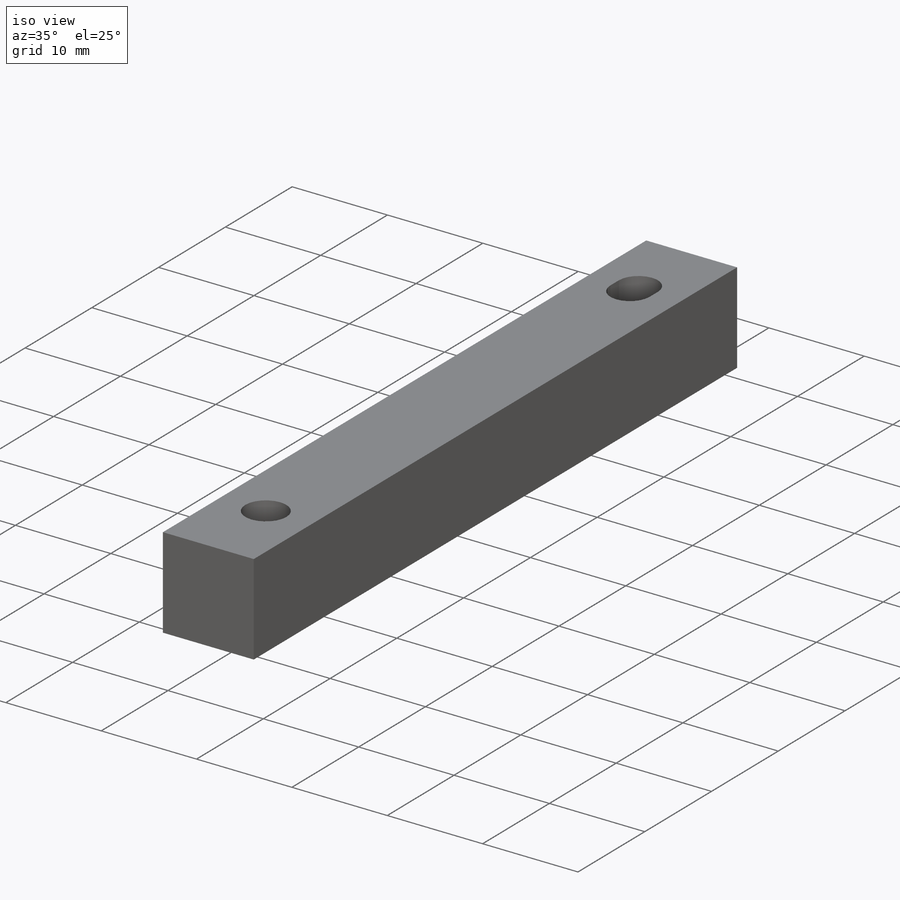
[diagram: iso view]
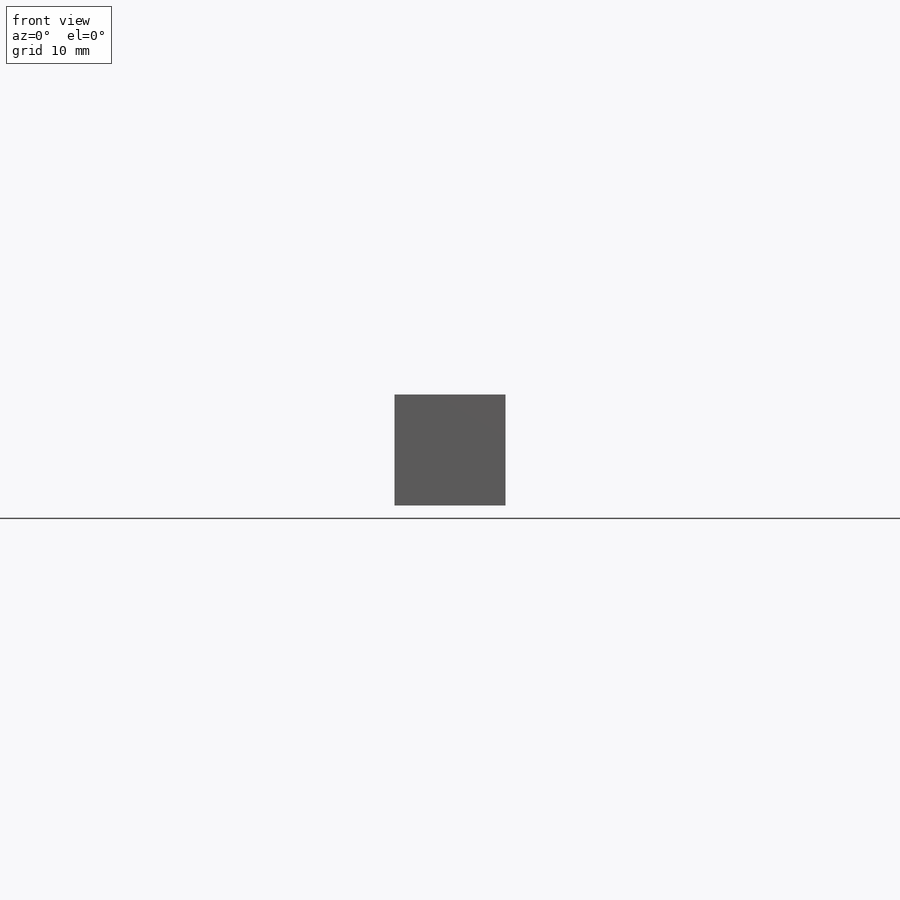
[diagram: front view]
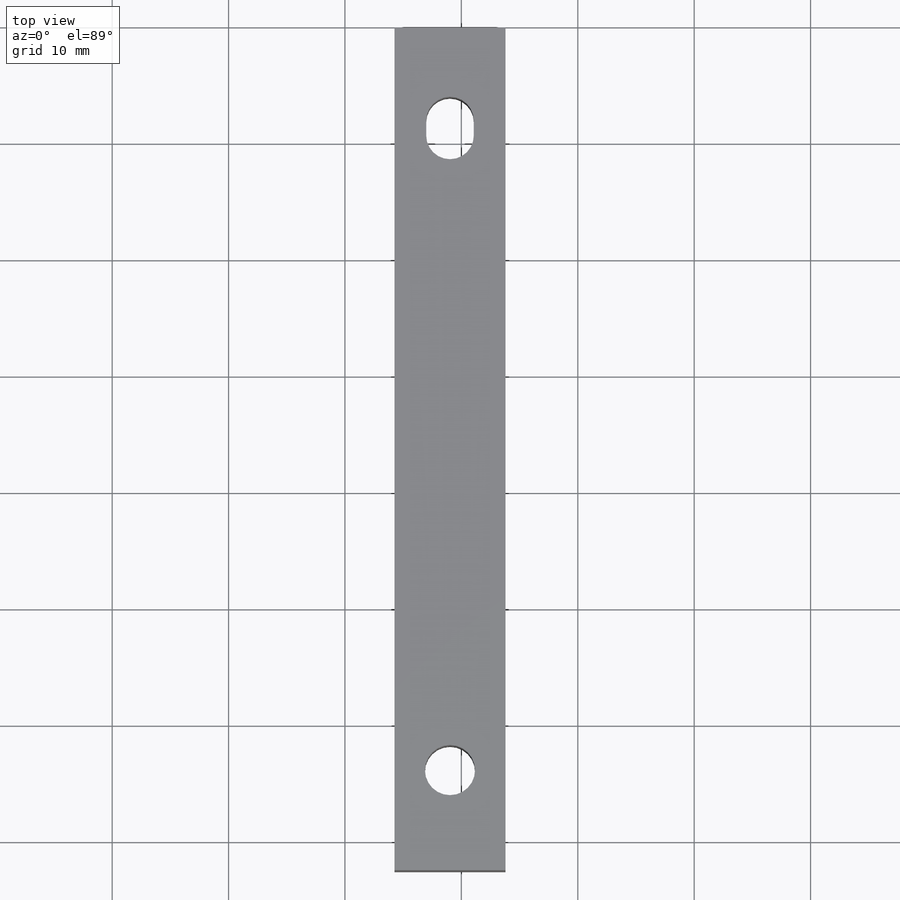
[diagram: top view]
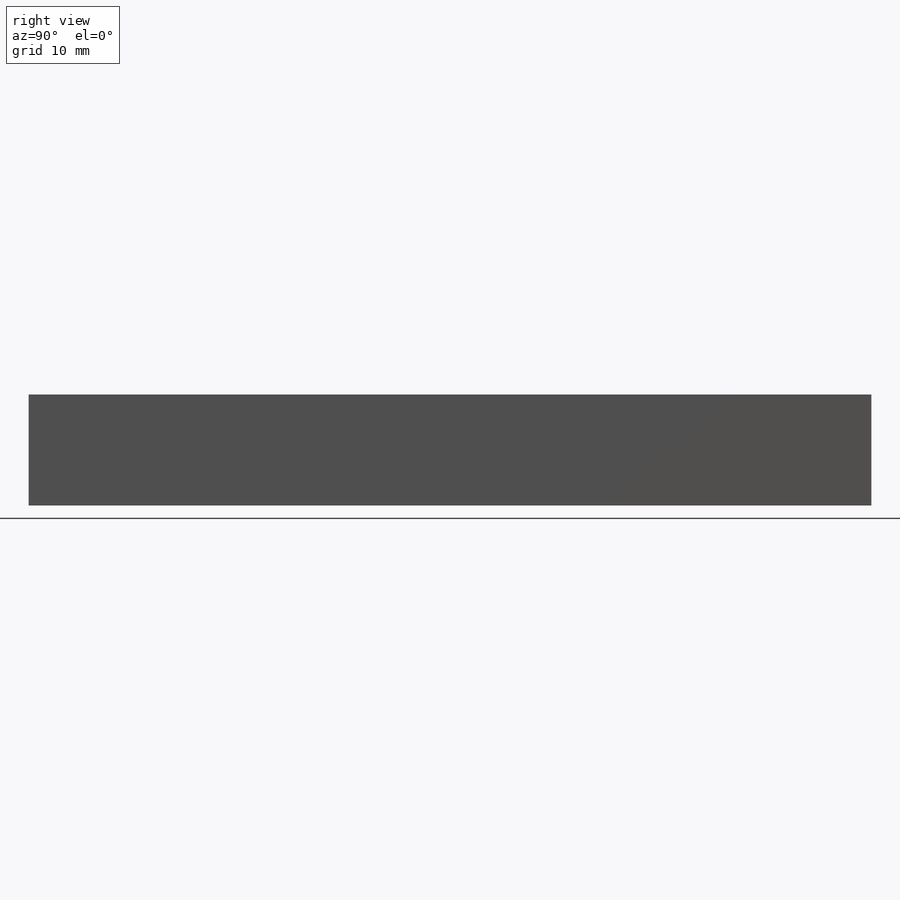
[diagram: right view]
SOLIDWORKS PART (.sldprt)
format: sldprt  version: not decoded by parser v0  size: 167,936 bytes
history: native  units: mm
features: sketch x4, material x1, extrude x1, hole x1, cut_extrude x1 (+16 scaffold rows collapsed)
feature tree (24):
  scaffold x16  (default folders/planes/origin — collapsed)
  material  "Material <not specified>"
  sketch  "Sketch1"  dims[D1=72.39mm D2=9.525mm]
  extrude  "Boss-Extrude1"  Depth=9.525mm
  sketch  "Sketch4"  dims[D1=~4.090805mm D2=1.27mm D3=4.7625mm D4=~8.612187mm]
  hole  "#18 (0.1695) Diameter Hole1"  Diameter=4.3053mm Depth=15.24mm
  sketch  "Sketch6"  dims[D1=~55.165625mm D2=4.7625mm]
  sketch  "Sketch5"  dims[hole-wizard template sketch: 47 standard entries collapsed; hole parameters kept: c15.Hole Depth=15.24mm c15.D3=~14.816244mm c15.Drill Angle=118.0deg]
  cut_extrude  "Cut-Extrude1"  [1 undecoded]
decode coverage: 6 of 7 modeling features carry decoded parameters
note: ~ marks probable driven/reference dimensions
note: 1 parameter value undecoded
note: suppression state not decoded; provenance and decode notes live in map.json
